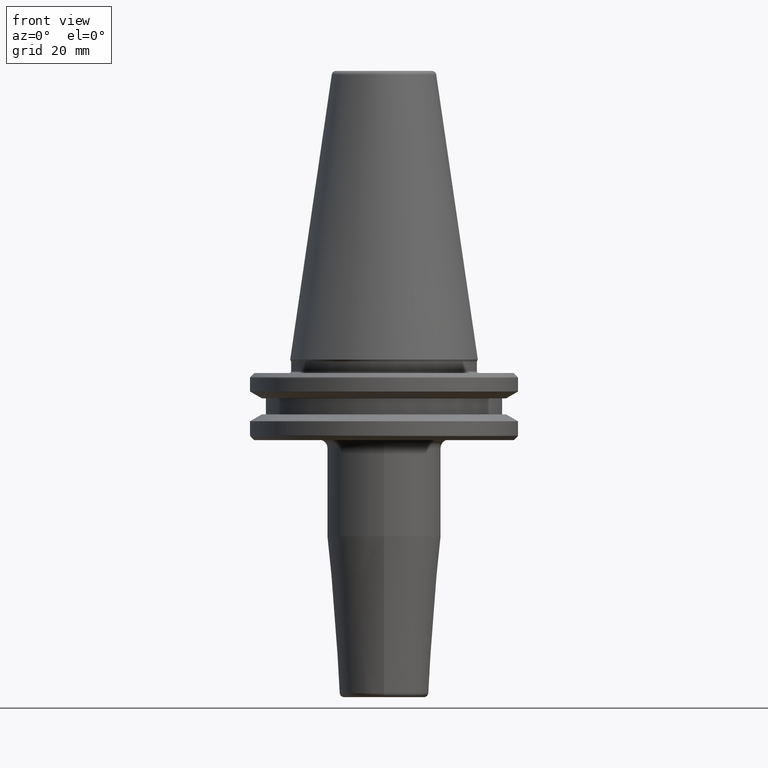
[diagram: clean part render]
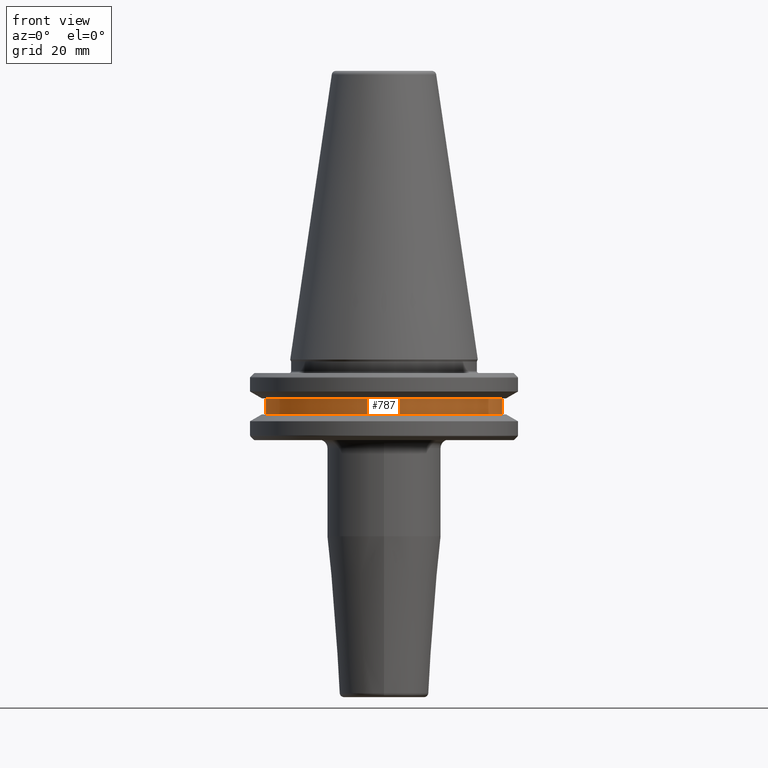
[diagram: same view with one face highlighted and labeled with its STEP entity id]
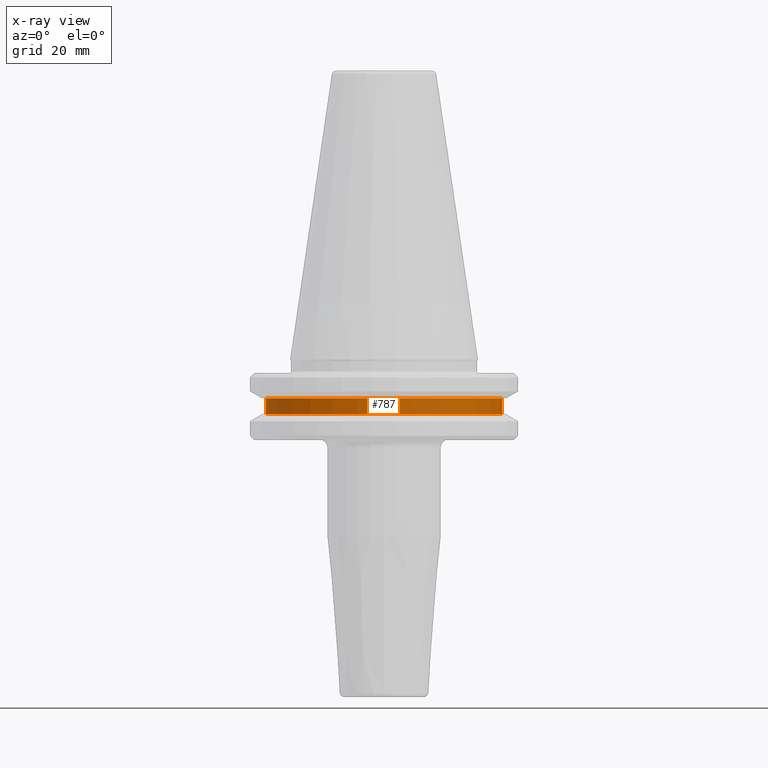
[diagram: x-ray of the same camera — body ghosted, the highlighted face saturated]
A machine part, front view. The second image highlights one B-rep face of the part: STEP entity #787.
The next image is the same camera in x-ray: the body ghosted, the highlighted face saturated — about 0% of this face is hidden behind the body in this view.
In plain terms, the highlighted cylindrical surface (partial cylindrical patch) has radius 28 mm, axis along (-0, -0, 1).
Its self-contained STEP definition (entity closure, byte-faithful):
#50 = DIRECTION ( 'NONE',  ( 1.000000000000000000, 0.0000000000000000000, 0.0000000000000000000 ) ) ;
#71 = AXIS2_PLACEMENT_3D ( 'NONE', #258, #932, #353 ) ;
#95 = CARTESIAN_POINT ( 'NONE',  ( -28.00000000000000000, 3.429011037612589300E-015, -13.00000000000001100 ) ) ;
#167 = VERTEX_POINT ( 'NONE', #95 ) ;
#237 = AXIS2_PLACEMENT_3D ( 'NONE', #1208, #641, #50 ) ;
#248 = CYLINDRICAL_SURFACE ( 'NONE', #483, 28.00000000000000000 ) ;
#258 = CARTESIAN_POINT ( 'NONE',  ( 0.0000000000000000000, 0.0000000000000000000, -9.199999999999999300 ) ) ;
#307 = DIRECTION ( 'NONE',  ( -0.0000000000000000000, -0.0000000000000000000, 1.000000000000000000 ) ) ;
#319 = VECTOR ( 'NONE', #1146, 1000.000000000000000 ) ;
#353 = DIRECTION ( 'NONE',  ( 1.000000000000000000, 0.0000000000000000000, 0.0000000000000000000 ) ) ;
#483 = AXIS2_PLACEMENT_3D ( 'NONE', #713, #307, #1048 ) ;
#520 = LINE ( 'NONE', #729, #983 ) ;
#540 = EDGE_LOOP ( 'NONE', ( #997, #1203, #999, #1259 ) ) ;
#617 = LINE ( 'NONE', #1054, #319 ) ;
#641 = DIRECTION ( 'NONE',  ( -0.0000000000000000000, -0.0000000000000000000, 1.000000000000000000 ) ) ;
#686 = CARTESIAN_POINT ( 'NONE',  ( -28.00000000000000000, 3.429011037612589300E-015, -9.199999999999999300 ) ) ;
#713 = CARTESIAN_POINT ( 'NONE',  ( 0.0000000000000000000, 0.0000000000000000000, 113.5216080541959500 ) ) ;
#729 = CARTESIAN_POINT ( 'NONE',  ( -28.00000000000000000, 3.429011037612589300E-015, 113.5216080541959500 ) ) ;
#745 = CIRCLE ( 'NONE', #237, 28.00000000000000000 ) ;
#747 = DIRECTION ( 'NONE',  ( -0.0000000000000000000, -0.0000000000000000000, 1.000000000000000000 ) ) ;
#755 = FACE_OUTER_BOUND ( 'NONE', #540, .T. ) ;
#777 = CIRCLE ( 'NONE', #71, 28.00000000000000000 ) ;
#787 = ADVANCED_FACE ( 'NONE', ( #755 ), #248, .T. ) ;
#798 = VERTEX_POINT ( 'NONE', #1184 ) ;
#804 = EDGE_CURVE ( 'NONE', #167, #1084, #520, .T. ) ;
#866 = VERTEX_POINT ( 'NONE', #1135 ) ;
#932 = DIRECTION ( 'NONE',  ( -0.0000000000000000000, -0.0000000000000000000, 1.000000000000000000 ) ) ;
#983 = VECTOR ( 'NONE', #747, 1000.000000000000000 ) ;
#997 = ORIENTED_EDGE ( 'NONE', *, *, #804, .F. ) ;
#999 = ORIENTED_EDGE ( 'NONE', *, *, #1001, .T. ) ;
#1001 = EDGE_CURVE ( 'NONE', #798, #866, #617, .T. ) ;
#1048 = DIRECTION ( 'NONE',  ( 1.000000000000000000, 0.0000000000000000000, 0.0000000000000000000 ) ) ;
#1054 = CARTESIAN_POINT ( 'NONE',  ( 28.00000000000000000, 0.0000000000000000000, 113.5216080541959500 ) ) ;
#1084 = VERTEX_POINT ( 'NONE', #686 ) ;
#1135 = CARTESIAN_POINT ( 'NONE',  ( 28.00000000000000000, 0.0000000000000000000, -9.199999999999999300 ) ) ;
#1146 = DIRECTION ( 'NONE',  ( -0.0000000000000000000, -0.0000000000000000000, 1.000000000000000000 ) ) ;
#1184 = CARTESIAN_POINT ( 'NONE',  ( 28.00000000000000000, 0.0000000000000000000, -13.00000000000001100 ) ) ;
#1203 = ORIENTED_EDGE ( 'NONE', *, *, #1205, .T. ) ;
#1205 = EDGE_CURVE ( 'NONE', #167, #798, #745, .T. ) ;
#1208 = CARTESIAN_POINT ( 'NONE',  ( 0.0000000000000000000, 0.0000000000000000000, -13.00000000000001100 ) ) ;
#1249 = EDGE_CURVE ( 'NONE', #1084, #866, #777, .T. ) ;
#1259 = ORIENTED_EDGE ( 'NONE', *, *, #1249, .F. ) ;